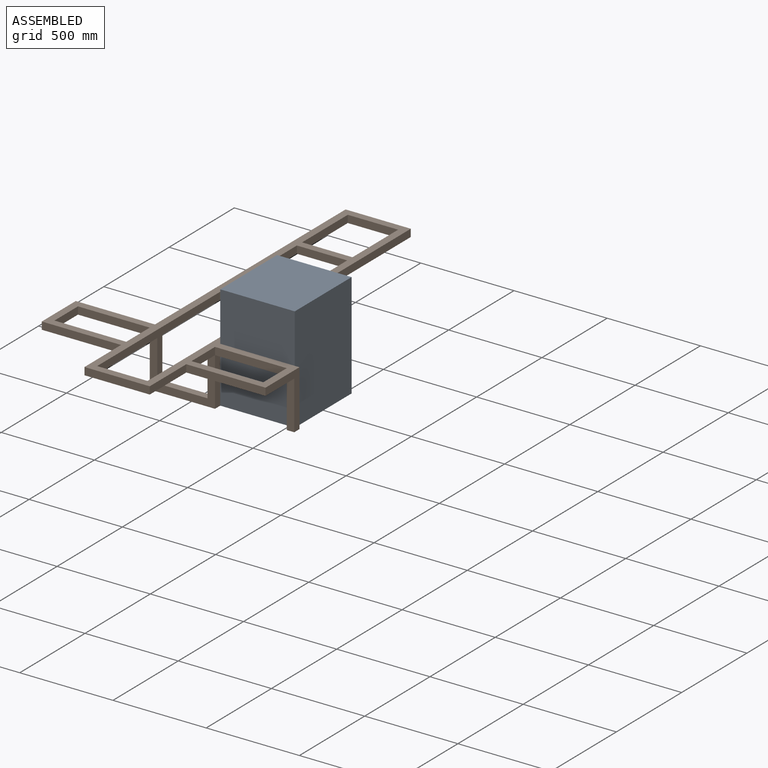
[diagram: assembled view]
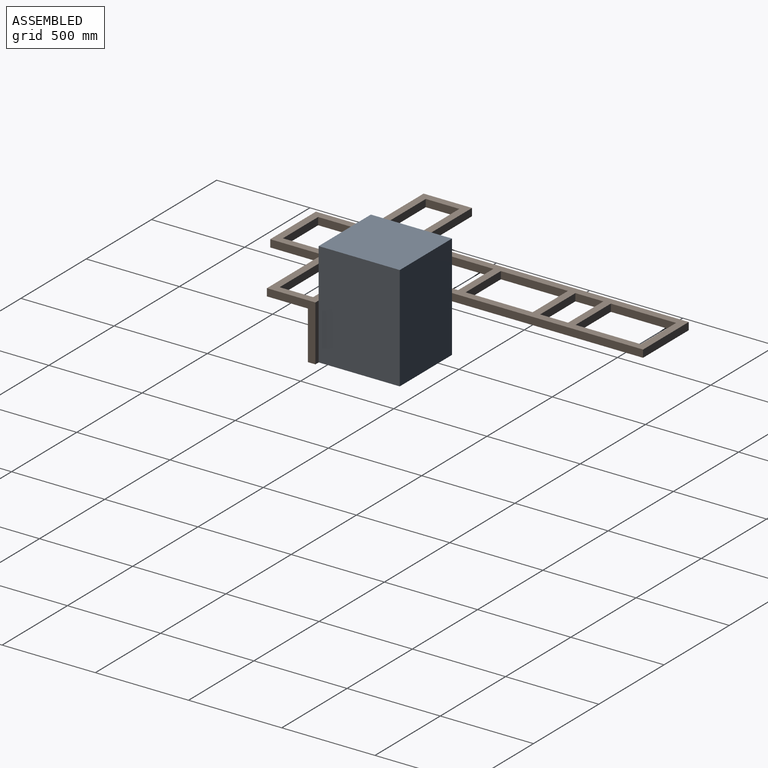
[diagram: assembled view, second angle]
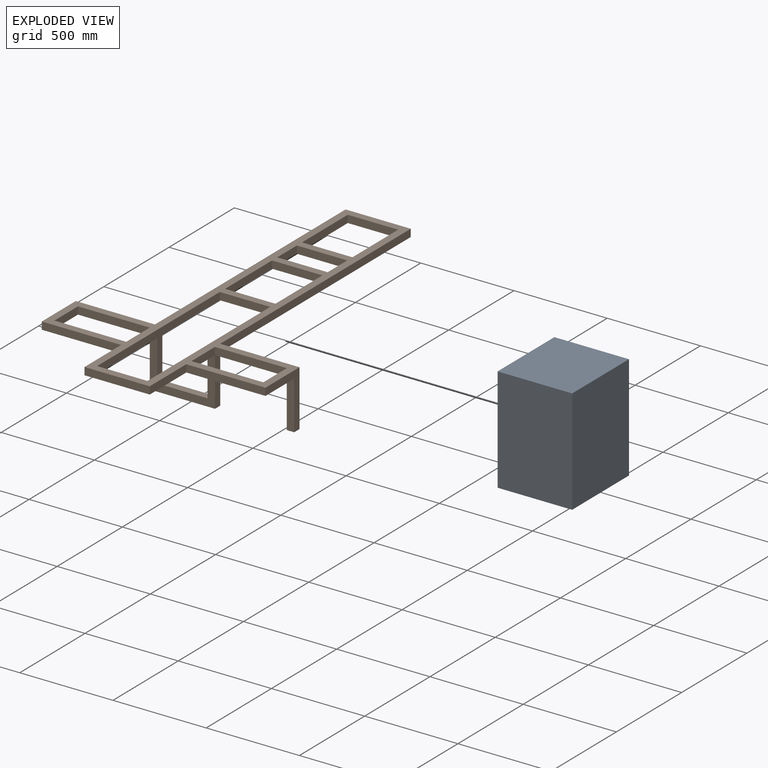
[diagram: exploded view]
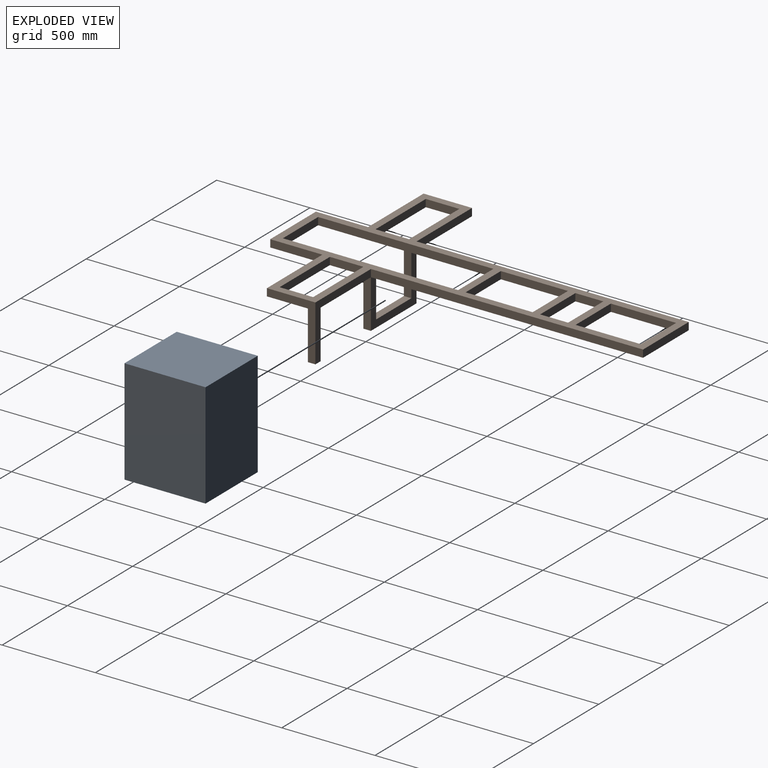
[diagram: exploded view, second angle]
ASSEMBLY  parts=2 mates=3
PART A: 6 faces, bbox 400x435x564 mm
  f0: plane 435x400mm, normal (0,0,1), area 174000mm2, adj f1,f3,f4,f5
  f1: plane 564x400mm, normal (0,-1,0), area 225600mm2, adj f0,f2,f4,f5
  f2: plane 435x400mm, normal (0,0,-1), area 174000mm2, adj f1,f3,f4,f5
  f3: plane 564x400mm, normal (0,1,0), area 225600mm2, adj f0,f2,f4,f5
  f4: plane 564x435mm, normal (-1,0,0), area 245340mm2, adj f0,f1,f2,f3
  f5: plane 564x435mm, normal (1,0,0), area 245340mm2, adj f0,f1,f2,f3
PART B: 49 faces, bbox 1200x2000x300 mm
  f0: plane 1460x350mm, normal (0,0,-1), area 160000mm2, adj f6,f16,f17,f18,f19,f20,f21,f22
  f1: plane 385x40mm, normal (0,0,-1), area 15400mm2, adj f15,f31,f41,f44
  f2: plane 1200x540mm, normal (0,0,-1), area 116200mm2, adj f3,f4,f5,f7,f8,f9,f10,f11
  f3: plane 385x40mm, normal (0,-1,0), area 15400mm2, adj f2,f4,f38,f39
  f4: plane 180x40mm, normal (-1,0,0), area 7200mm2, adj f2,f3,f5,f39
  f5: plane 385x40mm, normal (0,1,0), area 15400mm2, adj f2,f4,f38,f39
  f6: plane 1460x40mm, normal (-1,0,0), area 58400mm2, adj f0,f7,f32,f39
  f7: plane 425x40mm, normal (0,1,0), area 17000mm2, adj f2,f6,f8,f39
  f8: plane 260x40mm, normal (-1,0,0), area 10400mm2, adj f2,f7,f9,f39
  f9: plane 425x40mm, normal (0,-1,0), area 17000mm2, adj f2,f8,f10,f39
  f10: plane 280x40mm, normal (-1,0,0), area 11200mm2, adj f2,f9,f11,f39
  f11: plane 350x40mm, normal (0,-1,0), area 14000mm2, adj f2,f10,f12,f39
  f12: plane 280x40mm, normal (1,0,0), area 11200mm2, adj f2,f11,f13,f39
  f13: plane 425x40mm, normal (0,-1,0), area 17000mm2, adj f2,f12,f14,f39
  f14: plane 300x260mm, normal (1,0,0), area 20800mm2, adj f2,f13,f15,f39,f45,f46
  f15: plane 425x300mm, normal (0,1,0), area 27400mm2, adj f1,f14,f16,f39,f44,f46
  f16: plane 1460x40mm, normal (1,0,0), area 58400mm2, adj f0,f15,f32,f39
  f17: plane 270x40mm, normal (0,1,0), area 10800mm2, adj f0,f18,f33,f39
  f18: plane 350x40mm, normal (1,0,0), area 14000mm2, adj f0,f17,f19,f39
  f19: plane 270x40mm, normal (0,-1,0), area 10800mm2, adj f0,f18,f33,f39
  f20: plane 270x40mm, normal (0,1,0), area 10800mm2, adj f0,f21,f34,f39
  f21: plane 150x40mm, normal (1,0,0), area 6000mm2, adj f0,f20,f22,f39
  f22: plane 270x40mm, normal (0,-1,0), area 10800mm2, adj f0,f21,f34,f39
  f23: plane 270x40mm, normal (0,1,0), area 10800mm2, adj f0,f24,f35,f39
  f24: plane 360x40mm, normal (1,0,0), area 14400mm2, adj f0,f23,f25,f39
  f25: plane 270x40mm, normal (0,-1,0), area 10800mm2, adj f0,f24,f35,f39
  f26: plane 270x40mm, normal (0,-1,0), area 10800mm2, adj f0,f27,f36,f39
  f27: plane 940x260mm, normal (-1,0,0), area 46400mm2, adj f0,f2,f26,f28,f39,f40,f42,f47
  f28: plane 270x40mm, normal (0,1,0), area 10800mm2, adj f2,f27,f36,f39
  f29: plane 385x40mm, normal (0,1,0), area 15400mm2, adj f2,f30,f37,f39
  f30: plane 180x40mm, normal (1,0,0), area 7200mm2, adj f2,f29,f31,f39
  f31: plane 385x40mm, normal (0,-1,0), area 15400mm2, adj f1,f30,f37,f39
  f32: plane 350x40mm, normal (0,1,0), area 14000mm2, adj f0,f6,f16,f39
  f33: plane 350x40mm, normal (-1,0,0), area 14000mm2, adj f0,f17,f19,f39
  f34: plane 150x40mm, normal (-1,0,0), area 6000mm2, adj f0,f20,f22,f39
  f35: plane 360x40mm, normal (-1,0,0), area 14400mm2, adj f0,f23,f25,f39
  f36: plane 940x260mm, normal (1,0,0), area 46400mm2, adj f0,f2,f26,f28,f39,f40,f42,f47
  f37: plane 180x40mm, normal (-1,0,0), area 7200mm2, adj f2,f29,f31,f39
  f38: plane 180x40mm, normal (1,0,0), area 7200mm2, adj f2,f3,f5,f39
  f39: plane 2000x1200mm, normal (0,0,1), area 296400mm2, adj f3,f4,f5,f6,f7,f8,f9,f10
  f40: plane 350x260mm, normal (0,-1,0), area 31600mm2, adj f2,f27,f36,f41,f43,f47,f48
  f41: plane 260x40mm, normal (1,0,0), area 10400mm2, adj f1,f40,f42,f43
  f42: plane 350x260mm, normal (0,1,0), area 31600mm2, adj f0,f27,f36,f41,f43,f47,f48
  f43: plane 350x40mm, normal (0,0,-1), area 14000mm2, adj f40,f41,f42,f48
  f44: plane 260x40mm, normal (-1,0,0), area 10400mm2, adj f1,f15,f45,f46
  f45: plane 260x40mm, normal (0,-1,0), area 10400mm2, adj f2,f14,f44,f46
  f46: plane 40x40mm, normal (0,0,-1), area 1600mm2, adj f14,f15,f44,f45
  f47: plane 270x40mm, normal (0,0,1), area 10800mm2, adj f27,f36,f40,f42
  f48: plane 260x40mm, normal (-1,0,0), area 10400mm2, adj f2,f40,f42,f43
PLACE A t=(625,1075,-230)mm
PLACE B t=(0,960,-40)mm
MATE planar A.f2 <-> B.f46  axis (0,0,-1) through (375,717.5,-300)mm
MATE planar A.f4 <-> B.f16  axis (-1,0,0) through (175,717.5,-18)mm
MATE planar B.f15 <-> A.f1  axis (0,1,0) through (367.5,500,-40)mm
